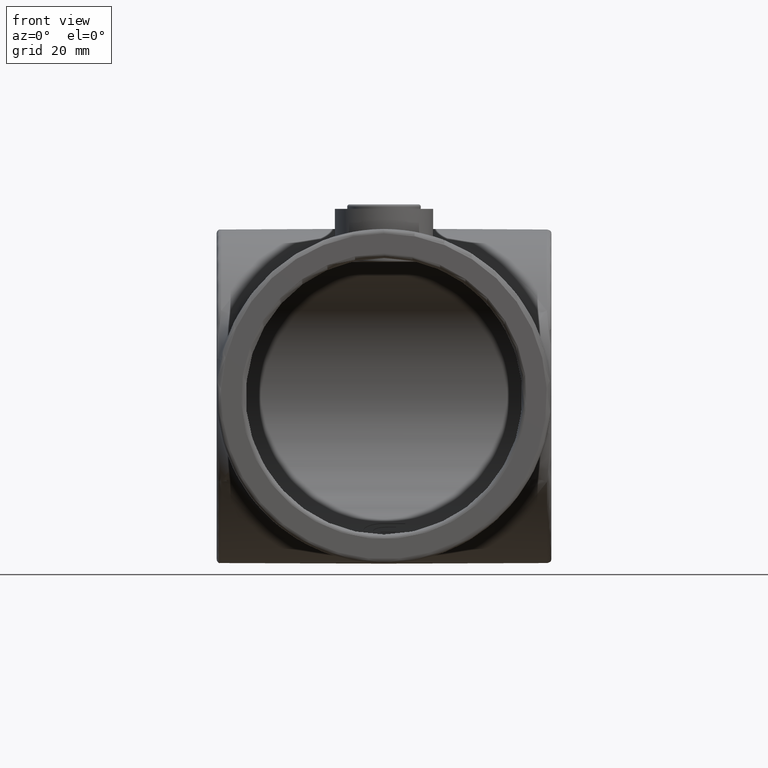
[diagram: clean part render]
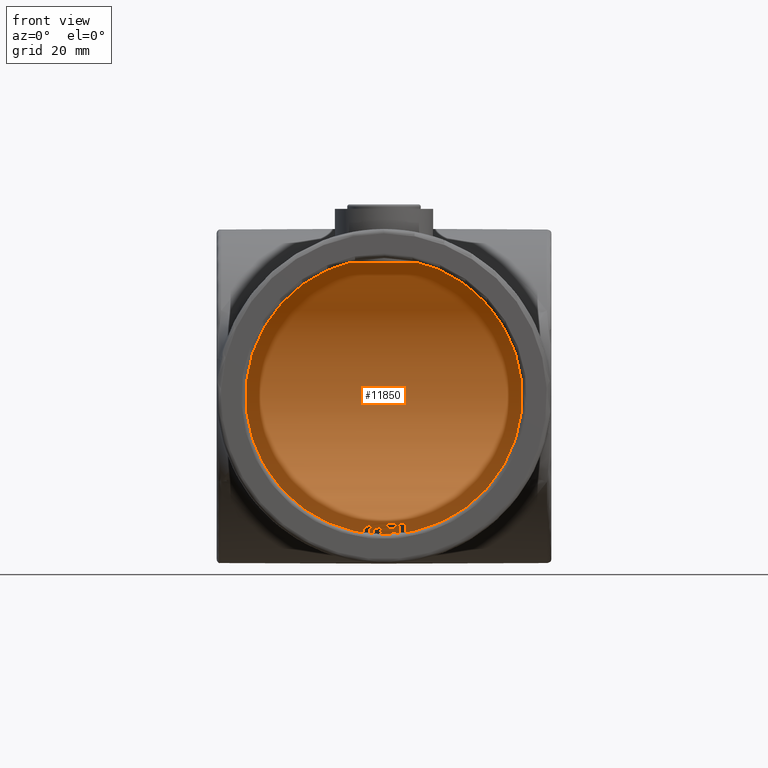
[diagram: same view with one face highlighted and labeled with its STEP entity id]
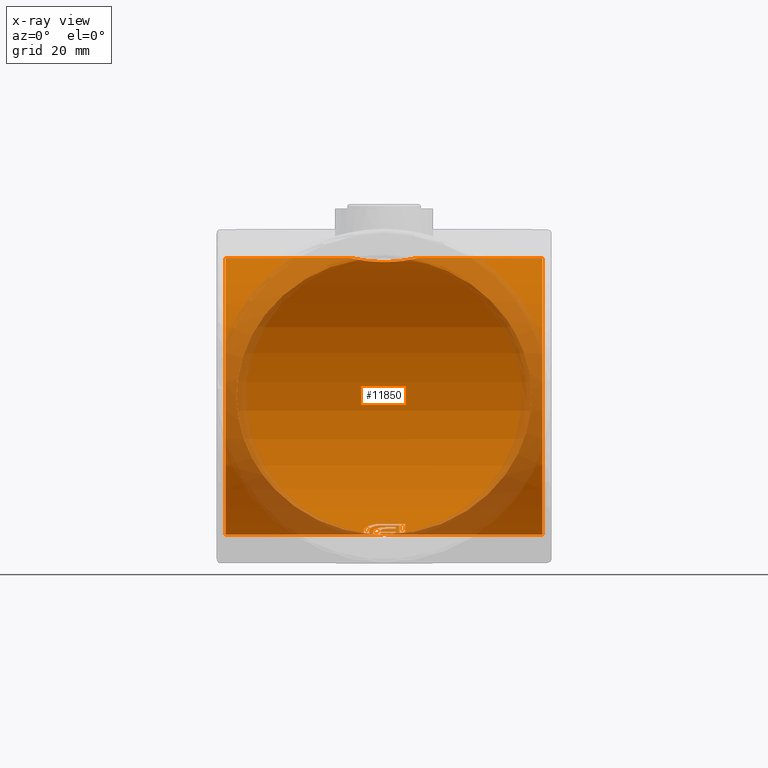
[diagram: x-ray of the same camera — body ghosted, the highlighted face saturated]
A machine part, front view. The second image highlights one B-rep face of the part: STEP entity #11850.
The next image is the same camera in x-ray: the body ghosted, the highlighted face saturated — about 23% of this face is hidden behind the body in this view.
In plain terms, the highlighted cylindrical surface (bore or boss wall) has radius 31 mm, axis along (1, 0, 0).
Its self-contained STEP definition (entity closure, byte-faithful):
#33 = CARTESIAN_POINT ( 'NONE',  ( 7.123155312459974020, 81.25431920314326817, 30.88018639624898753 ) ) ;
#73 = LINE ( 'NONE', #10088, #8027 ) ;
#128 = CARTESIAN_POINT ( 'NONE',  ( -0.3802192675530710608, 84.48666666666666458, -30.99617969291627873 ) ) ;
#132 = CARTESIAN_POINT ( 'NONE',  ( 6.674094865656858389, 87.70568651213653766, 30.77932892789243269 ) ) ;
#136 = CARTESIAN_POINT ( 'NONE',  ( 3.353638244119522049, 87.85376305937838026, -30.75966549891527180 ) ) ;
#139 = CARTESIAN_POINT ( 'NONE',  ( -0.6847684185291672554, 91.64773549936865038, -30.04191083188520039 ) ) ;
#155 = VERTEX_POINT ( 'NONE', #10168 ) ;
#156 = CARTESIAN_POINT ( 'NONE',  ( 0.1259622113365943541, 92.65321670165617718, -29.76779872133945304 ) ) ;
#223 = CARTESIAN_POINT ( 'NONE',  ( -1.840518192527490715, 91.40869575602789610, 30.10187885203538727 ) ) ;
#231 = AXIS2_PLACEMENT_3D ( 'NONE', #12684, #10443, #9456 ) ;
#233 = VERTEX_POINT ( 'NONE', #11387 ) ;
#241 = EDGE_CURVE ( 'NONE', #13867, #3164, #9690, .T. ) ;
#268 = ORIENTED_EDGE ( 'NONE', *, *, #8476, .F. ) ;
#270 = CARTESIAN_POINT ( 'NONE',  ( 4.597620713785860680, 87.37446699323537302, -30.81579096034311860 ) ) ;
#275 = CARTESIAN_POINT ( 'NONE',  ( 3.330198103406216248, 87.76431179017575346, -30.77073031198779773 ) ) ;
#288 = VERTEX_POINT ( 'NONE', #1800 ) ;
#357 = CARTESIAN_POINT ( 'NONE',  ( 2.649871705155119717, 85.01617448098903651, -30.98334051428584246 ) ) ;
#387 = DIRECTION ( 'NONE',  ( 1.000000000000000000, 1.859189885378015208E-15, 0.000000000000000000 ) ) ;
#427 = ORIENTED_EDGE ( 'NONE', *, *, #3283, .F. ) ;
#433 = CARTESIAN_POINT ( 'NONE',  ( -61.00993097816630950, 26.68764059626804297, 21.65746141130453495 ) ) ;
#518 = CARTESIAN_POINT ( 'NONE',  ( 1.846813014014228926, 85.95664800229573643, -30.93826800995224602 ) ) ;
#566 = CARTESIAN_POINT ( 'NONE',  ( -0.5411709820387217151, 96.18948915325404414, -28.50291834501849664 ) ) ;
#629 = ORIENTED_EDGE ( 'NONE', *, *, #5431, .F. ) ;
#668 = CARTESIAN_POINT ( 'NONE',  ( -0.3452297644040147606, 92.31731747142524114, -29.86339280924932282 ) ) ;
#683 = EDGE_CURVE ( 'NONE', #6062, #4649, #5671, .T. ) ;
#693 = LINE ( 'NONE', #4780, #8799 ) ;
#702 = CARTESIAN_POINT ( 'NONE',  ( 4.315063091484576674, 86.70500996454123310, -30.88185880402953032 ) ) ;
#722 = CARTESIAN_POINT ( 'NONE',  ( 2.796633363616275680, 85.10347171930598620, -30.98047738770342718 ) ) ;
#728 = CARTESIAN_POINT ( 'NONE',  ( 0.6041520877070188922, 84.48666666666666458, -30.99617969291627873 ) ) ;
#763 = VERTEX_POINT ( 'NONE', #270 ) ;
#780 = VERTEX_POINT ( 'NONE', #357 ) ;
#798 = CARTESIAN_POINT ( 'NONE',  ( -2.659202239328202655, 95.58067179846047168, -28.75566101998600033 ) ) ;
#805 = ORIENTED_EDGE ( 'NONE', *, *, #12098, .T. ) ;
#845 = VERTEX_POINT ( 'NONE', #11224 ) ;
#888 = CARTESIAN_POINT ( 'NONE',  ( -1.665500349895030041, 96.02853743876838166, -28.57121430888346580 ) ) ;
#892 = LINE ( 'NONE', #9101, #3951 ) ;
#893 = ORIENTED_EDGE ( 'NONE', *, *, #3677, .F. ) ;
#906 = CARTESIAN_POINT ( 'NONE',  ( -3.206126739439494777, 92.35988970021776368, -29.85165094328408486 ) ) ;
#944 = CARTESIAN_POINT ( 'NONE',  ( -0.3802192675530710608, 84.00000000000000000, 0.000000000000000000 ) ) ;
#956 = VERTEX_POINT ( 'NONE', #7303 ) ;
#1055 =( BOUNDED_CURVE ( )  B_SPLINE_CURVE ( 3, ( #6818, #433, #13174, #10024 ),
 .UNSPECIFIED., .F., .F. ) 
 B_SPLINE_CURVE_WITH_KNOTS ( ( 4, 4 ),
 ( 1.740010783319512422, 4.712388980384689674 ),
 .UNSPECIFIED. ) 
 CURVE ( )  GEOMETRIC_REPRESENTATION_ITEM ( )  RATIONAL_B_SPLINE_CURVE ( ( 1.000000000000000000, 0.3896708817066921737, 0.3896708817066921737, 1.000000000000000000 ) ) 
 REPRESENTATION_ITEM ( '' )  );
#1056 = CARTESIAN_POINT ( 'NONE',  ( -3.550080221786235501, 94.82829133615440753, -29.04762743931272695 ) ) ;
#1061 = CARTESIAN_POINT ( 'NONE',  ( 3.415973502846921139, 88.31354943975233596, -30.69899584551671268 ) ) ;
#1099 = CARTESIAN_POINT ( 'NONE',  ( 0.000000000000000000, 84.00000000000000000, -31.00000000000000000 ) ) ;
#1108 = CARTESIAN_POINT ( 'NONE',  ( 1.467944132712083682, 91.49149255091485600, 30.08123293546104193 ) ) ;
#1109 = CARTESIAN_POINT ( 'NONE',  ( -3.198183941686352227, 95.18323503352323200, -28.91276166077831178 ) ) ;
#1110 = ORIENTED_EDGE ( 'NONE', *, *, #4953, .F. ) ;
#1156 = CARTESIAN_POINT ( 'NONE',  ( 4.765570328901326924, 96.18948915325402993, -28.50291834501692634 ) ) ;
#1193 = CARTESIAN_POINT ( 'NONE',  ( -1.246856836132784085, 93.65788955459611032, -29.45725759026893087 ) ) ;
#1203 = CARTESIAN_POINT ( 'NONE',  ( 56.25594771466975885, 31.15350366197689880, -31.00000000000000355 ) ) ;
#1207 = CARTESIAN_POINT ( 'NONE',  ( -7.446443301945128823, 82.31778543042631213, 30.95650185697160239 ) ) ;
#1227 = CARTESIAN_POINT ( 'NONE',  ( -35.50000000000000711, 84.00000000000000000, -31.00000000000000000 ) ) ;
#1237 = DIRECTION ( 'NONE',  ( -1.000000000000000000, 4.444278610465189661E-15, -0.000000000000000000 ) ) ;
#1253 = CIRCLE ( 'NONE', #9117, 31.00000000000000000 ) ;
#1257 = CARTESIAN_POINT ( 'NONE',  ( 7.632296076500717064, 84.16674695325572486, 31.00179386574405171 ) ) ;
#1264 = CARTESIAN_POINT ( 'NONE',  ( -0.7451261797000865439, 91.26368925822515621, -30.13729307311942307 ) ) ;
#1273 = EDGE_LOOP ( 'NONE', ( #6639, #5474, #2938, #10036, #10270, #1934, #8780, #3821, #7071, #11217, #8767, #3686, #10611, #11731, #9758, #11730, #6835, #1910, #6186, #10732, #7589, #268, #12375, #5886, #8465, #11452, #8904, #13248, #3849, #8451, #6696, #893, #11077, #12586, #11849, #1110, #12377, #4869, #629, #427 ) ) ;
#1308 = CARTESIAN_POINT ( 'NONE',  ( -3.887507242736242929, 90.56981116188616454, 30.29653549723952821 ) ) ;
#1423 = CARTESIAN_POINT ( 'NONE',  ( 0.1259622113365943541, 92.65321670165617718, -29.76779872133945304 ) ) ;
#1475 = CARTESIAN_POINT ( 'NONE',  ( 0.8350828084907890858, 92.76984837881968815, -29.73364692419202271 ) ) ;
#1490 = CARTESIAN_POINT ( 'NONE',  ( 35.50000000000000000, 84.00000000000000000, 0.000000000000000000 ) ) ;
#1504 = CARTESIAN_POINT ( 'NONE',  ( -37.50000000000000711, 84.00000000000000000, 0.000000000000000000 ) ) ;
#1509 = VERTEX_POINT ( 'NONE', #5096 ) ;
#1557 = CARTESIAN_POINT ( 'NONE',  ( -0.5411709820387217151, 96.18948915325404414, -28.50291834501849664 ) ) ;
#1573 = CIRCLE ( 'NONE', #3640, 31.00000000000000000 ) ;
#1601 = CARTESIAN_POINT ( 'NONE',  ( 2.694191742477210383, 84.00000000000000000, 0.000000000000000000 ) ) ;
#1617 = CARTESIAN_POINT ( 'NONE',  ( 4.539624262884141892, 87.20222137955228447, -30.83428310759504853 ) ) ;
#1640 = VERTEX_POINT ( 'NONE', #13903 ) ;
#1650 = DIRECTION ( 'NONE',  ( 1.000000000000000000, -0.000000000000000000, -0.000000000000000000 ) ) ;
#1665 = CARTESIAN_POINT ( 'NONE',  ( 0.03544380298449788247, 92.61577771303294071, -29.77866713004452137 ) ) ;
#1691 = CARTESIAN_POINT ( 'NONE',  ( -1.204773847963580558, 96.13604149481606953, -28.52572032696760829 ) ) ;
#1704 = CARTESIAN_POINT ( 'NONE',  ( 2.515373130964903670, 86.43887616151681641, -30.90397873581877164 ) ) ;
#1709 = DIRECTION ( 'NONE',  ( 1.860630825039639740E-15, -1.000000000000000000, 2.664535259100375697E-15 ) ) ;
#1725 = B_SPLINE_CURVE_WITH_KNOTS ( 'NONE', 3,
 ( #1557, #7036, #8170, #4718, #2638, #1691, #6989, #12222, #13298, #10195 ),
 .UNSPECIFIED., .F., .F.,
 ( 4, 2, 2, 2, 4 ),
 ( 2.114194236346706529E-17, 0.0002858539662678852874, 0.0005717079325357494329, 0.0008575618988036136326, 0.001143415865071477616 ),
 .UNSPECIFIED. ) ;
#1740 = CARTESIAN_POINT ( 'NONE',  ( 0.9235570193883770873, 94.24172243824182260, -29.25930839406989747 ) ) ;
#1742 = LINE ( 'NONE', #9266, #5112 ) ;
#1746 = CARTESIAN_POINT ( 'NONE',  ( -2.095353798773885501, 95.87381392594669194, -28.63588988839063987 ) ) ;
#1747 = CARTESIAN_POINT ( 'NONE',  ( 2.694191742477258789, 84.00000000000000000, 0.000000000000000000 ) ) ;
#1759 =( BOUNDED_CURVE ( )  B_SPLINE_CURVE ( 3, ( #1099, #1203, #10849, #11935 ),
 .UNSPECIFIED., .F., .F. ) 
 B_SPLINE_CURVE_WITH_KNOTS ( ( 4, 4 ),
 ( 4.712388980384689674, 7.684767177449867148 ),
 .UNSPECIFIED. ) 
 CURVE ( )  GEOMETRIC_REPRESENTATION_ITEM ( )  RATIONAL_B_SPLINE_CURVE ( ( 1.000000000000000000, 0.3896708817066921737, 0.3896708817066921737, 1.000000000000000000 ) ) 
 REPRESENTATION_ITEM ( '' )  );
#1787 = CARTESIAN_POINT ( 'NONE',  ( 0.5385027825588115657, 94.22515264738235885, -29.26510396511550383 ) ) ;
#1800 = CARTESIAN_POINT ( 'NONE',  ( -0.7511080009330526330, 91.00404478656402318, -30.19839990177965205 ) ) ;
#1830 = VERTEX_POINT ( 'NONE', #11195 ) ;
#1832 = CARTESIAN_POINT ( 'NONE',  ( 2.694191742477258789, 88.62942383951482839, -30.65238057499143665 ) ) ;
#1846 = CARTESIAN_POINT ( 'NONE',  ( -1.840411861789091663, 95.97345650729515398, -28.59436181663382115 ) ) ;
#1866 = AXIS2_PLACEMENT_3D ( 'NONE', #8151, #8054, #4749 ) ;
#1869 = CARTESIAN_POINT ( 'NONE',  ( 3.353454989233097816, 85.49762847676886679, -30.96401785634687798 ) ) ;
#1892 = CARTESIAN_POINT ( 'NONE',  ( -1.647263182067968845, 93.30111322962176246, -29.57187706308387831 ) ) ;
#1904 = FACE_OUTER_BOUND ( 'NONE', #7450, .T. ) ;
#1910 = ORIENTED_EDGE ( 'NONE', *, *, #4861, .F. ) ;
#1927 = EDGE_CURVE ( 'NONE', #8086, #8083, #1742, .T. ) ;
#1934 = ORIENTED_EDGE ( 'NONE', *, *, #5730, .F. ) ;
#1961 = VERTEX_POINT ( 'NONE', #12452 ) ;
#1978 = B_SPLINE_CURVE_WITH_KNOTS ( 'NONE', 3,
 ( #6279, #3073, #7541, #1109, #10671, #1056, #4339, #2249, #13941, #8673 ),
 .UNSPECIFIED., .F., .F.,
 ( 4, 2, 2, 2, 4 ),
 ( 0.000000000000000000, 0.0005157686789029925249, 0.001031537357805985050, 0.001547306036708977466, 0.002063074715611970100 ),
 .UNSPECIFIED. ) ;
#2008 = CARTESIAN_POINT ( 'NONE',  ( 1.317214596534338478, 84.53659601104729404, -30.99536208210682631 ) ) ;
#2046 = CARTESIAN_POINT ( 'NONE',  ( -2.880319053305147481, 93.57615712368915695, -29.48429096268119309 ) ) ;
#2047 = AXIS2_PLACEMENT_3D ( 'NONE', #5888, #387, #1709 ) ;
#2061 = CYLINDRICAL_SURFACE ( 'NONE', #12083, 31.00000000000000000 ) ;
#2089 = CARTESIAN_POINT ( 'NONE',  ( -3.207924260986087628, 92.26868718960635363, -29.87704430986157789 ) ) ;
#2096 = CARTESIAN_POINT ( 'NONE',  ( -4.186589612597718002, 93.84747174312839491, -29.39445259181093917 ) ) ;
#2161 = CARTESIAN_POINT ( 'NONE',  ( -1.896594854012117581, 94.59882028649097663, -29.13205800437448190 ) ) ;
#2164 = B_SPLINE_CURVE_WITH_KNOTS ( 'NONE', 3,
 ( #8830, #9659, #9841, #3333, #12988, #7667, #1193, #9798, #10744, #3381 ),
 .UNSPECIFIED., .F., .F.,
 ( 4, 2, 2, 2, 4 ),
 ( 0.000000000000000000, 0.0003289928626339373285, 0.0006579857252678746569, 0.0009869785879018119854, 0.001315971450535749314 ),
 .UNSPECIFIED. ) ;
#2205 = CARTESIAN_POINT ( 'NONE',  ( -5.602578926020814976, 89.18519062818624832, 30.56459813647034807 ) ) ;
#2206 = CARTESIAN_POINT ( 'NONE',  ( -0.4747754687330669743, 92.15189173408158751, -29.90900621320039221 ) ) ;
#2248 = CARTESIAN_POINT ( 'NONE',  ( 6.068162711664879083, 88.63188581362810226, 30.65334235868821011 ) ) ;
#2249 = CARTESIAN_POINT ( 'NONE',  ( -3.850821791794561300, 94.43250057595442115, -29.19217933960177547 ) ) ;
#2253 = B_SPLINE_CURVE_WITH_KNOTS ( 'NONE', 3,
 ( #5301, #2089, #906, #10515, #9616, #7342, #10653, #9522, #2046, #9571, #5352, #4235, #3190, #12841 ),
 .UNSPECIFIED., .F., .F.,
 ( 4, 2, 2, 2, 2, 2, 4 ),
 ( 0.000000000000000000, 0.0002812563874854826841, 0.0005625127749709653681, 0.001125025549941933555, 0.001687538324912901634, 0.001968794712398385782, 0.002250051099883870146 ),
 .UNSPECIFIED. ) ;
#2259 = AXIS2_PLACEMENT_3D ( 'NONE', #5186, #13760, #12685 ) ;
#2302 = CARTESIAN_POINT ( 'NONE',  ( -7.123718169917534482, 81.25609098825820809, 30.88031873708606057 ) ) ;
#2307 = CARTESIAN_POINT ( 'NONE',  ( 3.245793792964501989, 87.50103290321420957, -30.80178684180900817 ) ) ;
#2308 = CARTESIAN_POINT ( 'NONE',  ( -0.7227292704415647639, 91.45703023457816982, -30.08981727984359011 ) ) ;
#2347 = CARTESIAN_POINT ( 'NONE',  ( 7.456776821851158310, 85.63525367115839515, 30.95890944060796812 ) ) ;
#2354 = CARTESIAN_POINT ( 'NONE',  ( -0.6655068190382805726, 91.70964638470931618, -30.02607920763115601 ) ) ;
#2388 = CARTESIAN_POINT ( 'NONE',  ( -2.546014466430008838, 91.19681112432027703, 30.15323851377928577 ) ) ;
#2422 = EDGE_CURVE ( 'NONE', #288, #4088, #5477, .T. ) ;
#2460 = VERTEX_POINT ( 'NONE', #12491 ) ;
#2496 = B_SPLINE_CURVE_WITH_KNOTS ( 'NONE', 3,
 ( #11844, #4293, #7588, #10805, #2206, #10855, #5368, #9588 ),
 .UNSPECIFIED., .F., .F.,
 ( 4, 2, 2, 4 ),
 ( 0.000000000000000000, 0.0003221347197253719274, 0.0004832020795880578911, 0.0006442694394507438548 ),
 .UNSPECIFIED. ) ;
#2531 = CARTESIAN_POINT ( 'NONE',  ( -5.808761847439067871, 79.04685750238716935, 30.60294150340785180 ) ) ;
#2541 = CARTESIAN_POINT ( 'NONE',  ( -1.164734330181522504, 94.91899514602158661, -29.01337620678849660 ) ) ;
#2585 = FACE_OUTER_BOUND ( 'NONE', #5009, .T. ) ;
#2636 = B_SPLINE_CURVE_WITH_KNOTS ( 'NONE', 3,
 ( #10347, #1704, #3936, #5000, #8140, #13578, #518, #12502, #6099, #7179, #2894, #10258 ),
 .UNSPECIFIED., .F., .F.,
 ( 4, 2, 2, 2, 2, 4 ),
 ( 0.000000000000000000, 0.0002758635330087855437, 0.0005517270660175710873, 0.001103454132035119840, 0.001655181198052668376, 0.002206908264070217129 ),
 .UNSPECIFIED. ) ;
#2638 = CARTESIAN_POINT ( 'NONE',  ( -1.016496901543760156, 96.16353913576399748, -28.51400601509734045 ) ) ;
#2710 = VERTEX_POINT ( 'NONE', #10375 ) ;
#2850 = DIRECTION ( 'NONE',  ( 0.000000000000000000, 0.000000000000000000, 1.000000000000000000 ) ) ;
#2854 = CARTESIAN_POINT ( 'NONE',  ( -0.08915951368140226374, 92.53900610405179350, -29.80077675657351577 ) ) ;
#2894 = CARTESIAN_POINT ( 'NONE',  ( 0.7879176271836616507, 85.68684716124765544, -30.95407212691209864 ) ) ;
#2912 = CIRCLE ( 'NONE', #10305, 31.00000000000000000 ) ;
#2917 = CARTESIAN_POINT ( 'NONE',  ( 4.083459326130315148, 86.32022403251717435, -30.91313321435428207 ) ) ;
#2925 = VECTOR ( 'NONE', #6286, 1000.000000000000000 ) ;
#2938 = ORIENTED_EDGE ( 'NONE', *, *, #6013, .F. ) ;
#2945 = CARTESIAN_POINT ( 'NONE',  ( -2.261571829468611128, 95.79880020962792742, -28.66687915454560098 ) ) ;
#2983 = CARTESIAN_POINT ( 'NONE',  ( -0.4641940751108006302, 94.03180312572895616, -29.33194378227625521 ) ) ;
#2998 = CARTESIAN_POINT ( 'NONE',  ( -2.353384359628750921, 91.81265878867986885, -29.99964271975471064 ) ) ;
#3022 = CARTESIAN_POINT ( 'NONE',  ( 4.649202453820061365, 87.55789804104325924, -30.79529298479280186 ) ) ;
#3036 = CARTESIAN_POINT ( 'NONE',  ( -2.066452159094058327, 92.69186853786699487, -29.75670491458592082 ) ) ;
#3044 = VERTEX_POINT ( 'NONE', #13336 ) ;
#3073 = CARTESIAN_POINT ( 'NONE',  ( -2.798146189206803136, 95.48626479995650129, -28.79368123674930402 ) ) ;
#3080 = CARTESIAN_POINT ( 'NONE',  ( -1.849840749993829636, 93.05634402217657453, -29.64777025590791837 ) ) ;
#3102 = CARTESIAN_POINT ( 'NONE',  ( 1.492743920132737934, 84.56930073546317317, -30.99480321960501072 ) ) ;
#3150 = CARTESIAN_POINT ( 'NONE',  ( -4.108661037081453138, 94.00073434417899421, -29.34266271968328255 ) ) ;
#3159 = VERTEX_POINT ( 'NONE', #6626 ) ;
#3164 = VERTEX_POINT ( 'NONE', #156 ) ;
#3185 = DIRECTION ( 'NONE',  ( -6.575161562170156400E-16, 1.000000000000000000, 0.000000000000000000 ) ) ;
#3190 = CARTESIAN_POINT ( 'NONE',  ( -2.496190971199229836, 94.08855555142204707, -29.31255801068594380 ) ) ;
#3251 = CARTESIAN_POINT ( 'NONE',  ( 2.898757936051074235, 91.09126650508004275, 30.17883033841999207 ) ) ;
#3275 = ORIENTED_EDGE ( 'NONE', *, *, #683, .T. ) ;
#3283 = EDGE_CURVE ( 'NONE', #7708, #12067, #6234, .T. ) ;
#3300 = CARTESIAN_POINT ( 'NONE',  ( -7.143758249089748880, 86.69140796715431918, 30.88482204681229248 ) ) ;
#3313 = CARTESIAN_POINT ( 'NONE',  ( -0.7511080009330733942, 84.00000000000000000, 0.000000000000000000 ) ) ;
#3322 = DIRECTION ( 'NONE',  ( 1.000000000000000000, -0.000000000000000000, -0.000000000000000000 ) ) ;
#3333 = CARTESIAN_POINT ( 'NONE',  ( -0.8709399223310229088, 93.87590054913714255, -29.38483618049485457 ) ) ;
#3345 = VERTEX_POINT ( 'NONE', #1156 ) ;
#3353 = CARTESIAN_POINT ( 'NONE',  ( -6.289197822824624140, 88.32690691848173969, 30.69816775300785494 ) ) ;
#3381 = CARTESIAN_POINT ( 'NONE',  ( -1.574527641707484937, 93.37866573361324640, -29.54726094001182446 ) ) ;
#3398 = CARTESIAN_POINT ( 'NONE',  ( 7.263374443558983984, 86.34967377152401014, 30.91289636200746216 ) ) ;
#3403 = CARTESIAN_POINT ( 'NONE',  ( 3.138170251992287607, 87.24620338087994753, -30.83004021665350791 ) ) ;
#3423 = CIRCLE ( 'NONE', #7373, 31.00000000000000000 ) ;
#3443 = CARTESIAN_POINT ( 'NONE',  ( 2.710451092730240319, 86.63762987921404601, -30.88766623885449292 ) ) ;
#3450 = EDGE_CURVE ( 'NONE', #7791, #7791, #3423, .T. ) ;
#3493 = CARTESIAN_POINT ( 'NONE',  ( -2.227665033823184260, 92.30098903662235443, -29.86793566709750891 ) ) ;
#3631 = CARTESIAN_POINT ( 'NONE',  ( -6.652538028363945699, 80.25556797359995187, 30.77482132550688831 ) ) ;
#3640 = AXIS2_PLACEMENT_3D ( 'NONE', #1601, #9132, #10056 ) ;
#3677 = EDGE_CURVE ( 'NONE', #1640, #7026, #11988, .T. ) ;
#3686 = ORIENTED_EDGE ( 'NONE', *, *, #13100, .F. ) ;
#3731 = B_SPLINE_CURVE_WITH_KNOTS ( 'NONE', 3,
 ( #3934, #1740, #3974, #1787, #4999, #9368, #10444, #12458, #5093, #2983 ),
 .UNSPECIFIED., .F., .F.,
 ( 4, 2, 2, 2, 4 ),
 ( 4.965645949983592435E-17, 0.0003854216711756620266, 0.0007708433423512743967, 0.001156265013526886713, 0.001541686684702499137 ),
 .UNSPECIFIED. ) ;
#3750 = VECTOR ( 'NONE', #9941, 1000.000000000000000 ) ;
#3790 = DIRECTION ( 'NONE',  ( -1.000000000000000000, 0.000000000000000000, 0.000000000000000000 ) ) ;
#3804 = CARTESIAN_POINT ( 'NONE',  ( -0.2059566884360171102, 92.45148155601954443, -29.82576305258469063 ) ) ;
#3821 = ORIENTED_EDGE ( 'NONE', *, *, #1927, .F. ) ;
#3849 = ORIENTED_EDGE ( 'NONE', *, *, #5449, .F. ) ;
#3898 = CARTESIAN_POINT ( 'NONE',  ( -0.04938770507210268196, 92.56710086463355935, -29.79270757110846546 ) ) ;
#3913 = CARTESIAN_POINT ( 'NONE',  ( 3.221169261074136703, 85.39001000924962170, -30.96897951374895541 ) ) ;
#3920 = B_SPLINE_CURVE_WITH_KNOTS ( 'NONE', 3,
 ( #11831, #6247, #11678, #2998, #13868, #10461, #12786, #13688 ),
 .UNSPECIFIED., .F., .F.,
 ( 4, 2, 2, 4 ),
 ( 0.000000000000000000, 0.0003906487271429856935, 0.0007812974542859713869, 0.001562594908571979854 ),
 .UNSPECIFIED. ) ;
#3929 = EDGE_CURVE ( 'NONE', #845, #6693, #693, .T. ) ;
#3934 = CARTESIAN_POINT ( 'NONE',  ( 1.052017728014928544, 94.24407277816655437, -29.25848548568257712 ) ) ;
#3936 = CARTESIAN_POINT ( 'NONE',  ( 2.448511786534353973, 86.37568602543532847, -30.90889325967051349 ) ) ;
#3951 = VECTOR ( 'NONE', #3790, 1000.000000000000000 ) ;
#3974 = CARTESIAN_POINT ( 'NONE',  ( 0.7950955535985805289, 94.23937493122967624, -29.26013085700397909 ) ) ;
#3979 = CARTESIAN_POINT ( 'NONE',  ( 4.128761371588518969, 86.39242827151855408, -30.90754417558338929 ) ) ;
#4032 = CARTESIAN_POINT ( 'NONE',  ( -2.581578503172852646, 95.62730953627351482, -28.73687875882850307 ) ) ;
#4033 = VECTOR ( 'NONE', #6828, 1000.000000000000000 ) ;
#4064 = CARTESIAN_POINT ( 'NONE',  ( 4.623419648292808048, 87.46620481538884917, -30.80574525834292032 ) ) ;
#4088 = VERTEX_POINT ( 'NONE', #8655 ) ;
#4102 = EDGE_CURVE ( 'NONE', #4980, #233, #2912, .T. ) ;
#4127 = CARTESIAN_POINT ( 'NONE',  ( -2.016070854318675831, 92.78523379205513777, -29.72925623514798943 ) ) ;
#4128 = CARTESIAN_POINT ( 'NONE',  ( -37.50000000000105871, 90.08498717050889582, -30.39692305373591807 ) ) ;
#4197 = CARTESIAN_POINT ( 'NONE',  ( -4.066207485986645054, 94.07579034276430718, -29.31697026744948786 ) ) ;
#4217 = EDGE_CURVE ( 'NONE', #6693, #8086, #10795, .T. ) ;
#4235 = CARTESIAN_POINT ( 'NONE',  ( -2.559471409820372134, 94.02162249274917372, -29.33551811512007745 ) ) ;
#4247 = CARTESIAN_POINT ( 'NONE',  ( 4.765570328901326924, 88.49879636109167791, -30.67182471424593970 ) ) ;
#4278 = CARTESIAN_POINT ( 'NONE',  ( -4.467106070884727664, 93.03586408514406969, -29.65439964478776602 ) ) ;
#4293 = CARTESIAN_POINT ( 'NONE',  ( -0.6100785870458143023, 91.86948885898218009, -29.98468600393988481 ) ) ;
#4319 = EDGE_CURVE ( 'NONE', #956, #7391, #6613, .T. ) ;
#4338 = CARTESIAN_POINT ( 'NONE',  ( 5.557466549716630233, 78.77934960481162818, 30.55723824973748748 ) ) ;
#4339 = CARTESIAN_POINT ( 'NONE',  ( -3.657305844903739001, 94.70106929406162521, -29.09480226477667131 ) ) ;
#4371 = CARTESIAN_POINT ( 'NONE',  ( -4.222091261731295120, 93.76927470949885901, -29.42054113514721436 ) ) ;
#4372 = EDGE_CURVE ( 'NONE', #13081, #2710, #6442, .T. ) ;
#4386 = CARTESIAN_POINT ( 'NONE',  ( -6.074300380024328483, 88.62363140466018763, 30.65457378154846424 ) ) ;
#4434 = CARTESIAN_POINT ( 'NONE',  ( 1.834890053978293523, 91.41018635354635080, 30.10151330940056269 ) ) ;
#4435 = CARTESIAN_POINT ( 'NONE',  ( -2.432936785630980481, 94.15543270352227978, -29.28936985672839910 ) ) ;
#4440 = CARTESIAN_POINT ( 'NONE',  ( 3.421973407977590753, 88.49879636109167791, -30.67182471424593970 ) ) ;
#4483 = CARTESIAN_POINT ( 'NONE',  ( -0.3706246870586021869, 91.62494960948448863, 30.04763124533309337 ) ) ;
#4520 = DIRECTION ( 'NONE',  ( 0.000000000000000000, 0.000000000000000000, -1.000000000000000000 ) ) ;
#4523 = CARTESIAN_POINT ( 'NONE',  ( 6.286824628326969311, 88.33029916918903268, 30.69768250019774314 ) ) ;
#4529 = CARTESIAN_POINT ( 'NONE',  ( 3.276280008398462229, 87.58794541771169406, -30.79179330383766455 ) ) ;
#4545 = VERTEX_POINT ( 'NONE', #9172 ) ;
#4547 = CARTESIAN_POINT ( 'NONE',  ( -4.553300676463714503, 84.48666666666666458, -30.99617969291627873 ) ) ;
#4623 = CARTESIAN_POINT ( 'NONE',  ( -2.178464051080761354, 94.39444095949488656, -29.20560549235620229 ) ) ;
#4649 = VERTEX_POINT ( 'NONE', #13039 ) ;
#4718 = CARTESIAN_POINT ( 'NONE',  ( -0.9219567956309668855, 96.17414312037185198, -28.50947707721427093 ) ) ;
#4749 = DIRECTION ( 'NONE',  ( 0.000000000000000000, 5.372046893347532003E-15, 1.000000000000000000 ) ) ;
#4765 = EDGE_CURVE ( 'NONE', #9249, #7819, #5880, .T. ) ;
#4780 = CARTESIAN_POINT ( 'NONE',  ( -37.50000000000017053, 85.68097504081769955, -30.95439101181199959 ) ) ;
#4781 = FACE_BOUND ( 'NONE', #9887, .T. ) ;
#4861 = EDGE_CURVE ( 'NONE', #11498, #13081, #6376, .T. ) ;
#4869 = ORIENTED_EDGE ( 'NONE', *, *, #13781, .F. ) ;
#4877 = CARTESIAN_POINT ( 'NONE',  ( -1.574527641707484937, 93.37866573361324640, -29.54726094001182446 ) ) ;
#4953 = EDGE_CURVE ( 'NONE', #10225, #6339, #6045, .T. ) ;
#4962 = CARTESIAN_POINT ( 'NONE',  ( 4.435666798062454674, 86.94993867750287109, -30.85943380967395910 ) ) ;
#4980 = VERTEX_POINT ( 'NONE', #9607 ) ;
#4982 = CARTESIAN_POINT ( 'NONE',  ( 3.939962204823127312, 86.10982180209207115, -30.92819832091398169 ) ) ;
#4999 = CARTESIAN_POINT ( 'NONE',  ( 0.4107520371400361636, 94.21282340845672820, -29.26941302465385064 ) ) ;
#5000 = CARTESIAN_POINT ( 'NONE',  ( 2.308657982352535054, 86.25657734192793669, -30.91781727950812808 ) ) ;
#5009 = EDGE_LOOP ( 'NONE', ( #8890 ) ) ;
#5056 = CARTESIAN_POINT ( 'NONE',  ( 4.224945857444470043, 86.54706034692409844, -30.89528711129598548 ) ) ;
#5093 = CARTESIAN_POINT ( 'NONE',  ( -0.3418622469867098612, 94.06849777435506610, -29.31939386422386562 ) ) ;
#5096 = CARTESIAN_POINT ( 'NONE',  ( 0.000000000000000000, 84.00000000000000000, -31.00000000000000000 ) ) ;
#5112 = VECTOR ( 'NONE', #1650, 1000.000000000000000 ) ;
#5120 = CARTESIAN_POINT ( 'NONE',  ( 2.008506584172875087, 84.71241465235985402, -30.99188443378956848 ) ) ;
#5126 = CARTESIAN_POINT ( 'NONE',  ( 4.764162805147315716, 88.40391833143033296, -30.68574096926383987 ) ) ;
#5186 = CARTESIAN_POINT ( 'NONE',  ( -35.50000000000000711, 84.00000000000000000, 0.000000000000000000 ) ) ;
#5192 = CARTESIAN_POINT ( 'NONE',  ( -1.720007066455013112, 93.22347692223043225, -29.59620113562203869 ) ) ;
#5217 = CARTESIAN_POINT ( 'NONE',  ( 2.649871705155119717, 85.01617448098903651, -30.98334051428584246 ) ) ;
#5301 = CARTESIAN_POINT ( 'NONE',  ( -3.209703755540006753, 92.17735945882903081, -29.90201986958571823 ) ) ;
#5339 = CARTESIAN_POINT ( 'NONE',  ( -0.4641940751108006302, 94.03180312572895616, -29.33194378227625521 ) ) ;
#5352 = CARTESIAN_POINT ( 'NONE',  ( -2.676444402025114577, 93.88063228660443826, -29.38330556773054525 ) ) ;
#5357 = CARTESIAN_POINT ( 'NONE',  ( -4.549002571906180847, 92.35072756613483591, -29.85460857970230464 ) ) ;
#5368 = CARTESIAN_POINT ( 'NONE',  ( -0.3799198025663532707, 92.27772088337249556, -29.87442093976763147 ) ) ;
#5370 = CARTESIAN_POINT ( 'NONE',  ( 0.8350828084907890858, 92.76984837881968815, -29.73364692419202271 ) ) ;
#5419 = CARTESIAN_POINT ( 'NONE',  ( -2.892319582188626725, 91.06494732203405817, 30.18464235584472988 ) ) ;
#5431 = EDGE_CURVE ( 'NONE', #12067, #12270, #1978, .T. ) ;
#5449 = EDGE_CURVE ( 'NONE', #4088, #13867, #2496, .T. ) ;
#5463 = CARTESIAN_POINT ( 'NONE',  ( 6.041071361945919982, 79.33267757833525025, 30.64817566804261872 ) ) ;
#5474 = ORIENTED_EDGE ( 'NONE', *, *, #11284, .F. ) ;
#5477 = B_SPLINE_CURVE_WITH_KNOTS ( 'NONE', 3,
 ( #5563, #11994, #1264, #2308, #8814, #139, #2354, #6653 ),
 .UNSPECIFIED., .F., .F.,
 ( 4, 2, 2, 4 ),
 ( 0.000000000000000000, 0.0004000044900714646657, 0.0006000067351071769950, 0.0008000089801428892158 ),
 .UNSPECIFIED. ) ;
#5496 = VERTEX_POINT ( 'NONE', #4435 ) ;
#5509 = CARTESIAN_POINT ( 'NONE',  ( -6.676760221737280787, 87.70094659205641108, 30.77990612714344110 ) ) ;
#5544 = DIRECTION ( 'NONE',  ( 0.000000000000000000, 0.000000000000000000, 1.000000000000000000 ) ) ;
#5558 = CARTESIAN_POINT ( 'NONE',  ( 7.574926302794859900, 83.05216365961837255, 30.98765969665095810 ) ) ;
#5563 = CARTESIAN_POINT ( 'NONE',  ( -0.7511080009330526330, 91.00404478656402318, -30.19839990177965205 ) ) ;
#5600 = CARTESIAN_POINT ( 'NONE',  ( 6.982450379377507232, 80.91443479005567951, 30.84782506196081897 ) ) ;
#5606 = B_SPLINE_CURVE_WITH_KNOTS ( 'NONE', 3,
 ( #12538, #4064, #3022, #8484, #12638, #6360, #10664, #12677, #5126, #4247 ),
 .UNSPECIFIED., .F., .F.,
 ( 4, 2, 2, 2, 4 ),
 ( 0.000000000000000000, 0.0002870504080991531691, 0.0005741008161983063383, 0.0008611512242974595074, 0.001148201632396612677 ),
 .UNSPECIFIED. ) ;
#5627 = EDGE_CURVE ( 'NONE', #1961, #11498, #9865, .T. ) ;
#5659 = CARTESIAN_POINT ( 'NONE',  ( 2.582225332400281292, 86.50206204805225241, -30.89886220409573880 ) ) ;
#5671 = B_SPLINE_CURVE_WITH_KNOTS ( 'NONE', 3,
 ( #4338, #7732, #5463, #10958, #6644, #5600, #33, #8712, #11843, #5558, #13046, #1257, #12909, #8808, #2347, #3398, #6502, #9773, #132, #4523, #2248, #13102, #7587, #6694, #3251, #4434, #1108, #11984, #10759, #4483, #11943, #9859, #223, #2388, #5419, #7780, #1308, #6551, #8850, #8672, #2205, #4386, #3353, #5509, #9720, #3300, #10804, #13002, #7683, #11888, #12957, #1207, #8756, #2302, #6883, #3631, #5845, #5708, #2531, #11181 ),
 .UNSPECIFIED., .F., .F.,
 ( 4, 2, 2, 2, 2, 2, 2, 2, 2, 2, 2, 2, 2, 2, 2, 2, 2, 2, 2, 2, 2, 2, 2, 2, 2, 2, 2, 2, 2, 4 ),
 ( 0.04211939117065870847, 0.04322606357798514098, 0.04433273598531157350, 0.04543940839263801296, 0.04654608079996444547, 0.04765275320729087799, 0.04875942561461731051, 0.04986609802194374302, 0.05097277042927017554, 0.05207944283659661500, 0.05318611524392304751, 0.05539946005857591949, 0.05761280487322878452, 0.05871947728055522397, 0.05982614968788166343, 0.06093282209520810982, 0.06203949450253455622, 0.06314616690986099568, 0.06425283931718743513, 0.06535951172451387459, 0.06646618413184031404, 0.06757285653916675350, 0.06867952894649320683, 0.06978620135381964629, 0.07089287376114608574, 0.07310621857579900629, 0.07421289098312544574, 0.07531956339045189908, 0.07642623579777832465, 0.07753290820510477799 ),
 .UNSPECIFIED. ) ;
#5708 = CARTESIAN_POINT ( 'NONE',  ( -6.039757244105455669, 79.33124788537800498, 30.64792818996159340 ) ) ;
#5730 = EDGE_CURVE ( 'NONE', #780, #3159, #9458, .T. ) ;
#5783 = CARTESIAN_POINT ( 'NONE',  ( -0.7511080009330595164, 88.62942383951481418, -30.65238057499175639 ) ) ;
#5788 = CARTESIAN_POINT ( 'NONE',  ( -37.50000000000000711, 85.68097504082109594, -30.95439101181181840 ) ) ;
#5798 = CARTESIAN_POINT ( 'NONE',  ( -2.435269419174247663, 84.00000000000000000, 0.000000000000000000 ) ) ;
#5801 = FACE_BOUND ( 'NONE', #1273, .T. ) ;
#5845 = CARTESIAN_POINT ( 'NONE',  ( -6.461093204294197534, 79.93426655067807474, 30.73373651484464375 ) ) ;
#5880 = LINE ( 'NONE', #11132, #4033 ) ;
#5886 = ORIENTED_EDGE ( 'NONE', *, *, #4319, .F. ) ;
#5888 = CARTESIAN_POINT ( 'NONE',  ( -0.7511080009330526330, 84.00000000000000000, 0.000000000000000000 ) ) ;
#6013 = EDGE_CURVE ( 'NONE', #4545, #3345, #10372, .T. ) ;
#6018 = DIRECTION ( 'NONE',  ( 1.000000000000000000, -0.000000000000000000, 0.000000000000000000 ) ) ;
#6045 = LINE ( 'NONE', #10693, #12581 ) ;
#6062 = VERTEX_POINT ( 'NONE', #6871 ) ;
#6075 = CARTESIAN_POINT ( 'NONE',  ( 2.649871705155119717, 85.01617448098903651, -30.98334051428584246 ) ) ;
#6099 = CARTESIAN_POINT ( 'NONE',  ( 1.331576539516846180, 85.76433238399683034, -30.94977044577728265 ) ) ;
#6176 = DIRECTION ( 'NONE',  ( 1.000000000000000000, -0.000000000000000000, -0.000000000000000000 ) ) ;
#6186 = ORIENTED_EDGE ( 'NONE', *, *, #5627, .F. ) ;
#6220 = CARTESIAN_POINT ( 'NONE',  ( 2.494479865913398875, 84.92817225987526797, -30.98612739763006729 ) ) ;
#6234 = B_SPLINE_CURVE_WITH_KNOTS ( 'NONE', 3,
 ( #888, #6240, #1846, #9374, #1746, #2945, #10352, #10454, #4032, #798 ),
 .UNSPECIFIED., .F., .F.,
 ( 4, 2, 2, 2, 4 ),
 ( 0.000000000000000000, 0.0002768168702296858793, 0.0005536337404593717586, 0.0008304506106890576379, 0.001107267480918743517 ),
 .UNSPECIFIED. ) ;
#6240 = CARTESIAN_POINT ( 'NONE',  ( -1.752955202823031966, 96.00100231261615136, -28.58280665116974006 ) ) ;
#6247 = CARTESIAN_POINT ( 'NONE',  ( -2.263043279045166223, 92.17996347221300368, -29.90157146618688344 ) ) ;
#6279 = CARTESIAN_POINT ( 'NONE',  ( -2.659202239328202655, 95.58067179846047168, -28.75566101998600033 ) ) ;
#6286 = DIRECTION ( 'NONE',  ( -1.000000000000000000, 0.000000000000000000, 0.000000000000000000 ) ) ;
#6321 = CARTESIAN_POINT ( 'NONE',  ( -2.435269419174247663, 85.68097504082109594, -30.95439101181181840 ) ) ;
#6327 = CARTESIAN_POINT ( 'NONE',  ( -1.907658926864581828, 92.96711812034743616, -29.67490188175674959 ) ) ;
#6339 = VERTEX_POINT ( 'NONE', #10601 ) ;
#6360 = CARTESIAN_POINT ( 'NONE',  ( 4.736286858513182096, 88.02510362214492545, -30.73772173072723746 ) ) ;
#6376 = LINE ( 'NONE', #5788, #10900 ) ;
#6424 = DIRECTION ( 'NONE',  ( -3.399498424696484985E-15, -1.000000000000000000, -1.243449787580175325E-14 ) ) ;
#6435 = DIRECTION ( 'NONE',  ( 4.448726333553424620E-15, 1.000000000000000000, -8.881784197001252323E-16 ) ) ;
#6442 = CIRCLE ( 'NONE', #13633, 31.00000000000000000 ) ;
#6494 = CARTESIAN_POINT ( 'NONE',  ( 0.6041520877070188922, 84.48666666666666458, -30.99617969291627873 ) ) ;
#6498 = EDGE_CURVE ( 'NONE', #3044, #10225, #13715, .T. ) ;
#6502 = CARTESIAN_POINT ( 'NONE',  ( 7.139041446831439153, 86.70385721408533186, 30.88372923260543956 ) ) ;
#6551 = CARTESIAN_POINT ( 'NONE',  ( -4.500098759197400433, 90.16638000958755583, 30.38121523928393941 ) ) ;
#6575 = CARTESIAN_POINT ( 'NONE',  ( 3.421973407977570325, 84.00000000000000000, 0.000000000000000000 ) ) ;
#6613 = LINE ( 'NONE', #13387, #3750 ) ;
#6626 = CARTESIAN_POINT ( 'NONE',  ( 4.128761371588518969, 86.39242827151855408, -30.90754417558338929 ) ) ;
#6639 = ORIENTED_EDGE ( 'NONE', *, *, #11902, .F. ) ;
#6644 = CARTESIAN_POINT ( 'NONE',  ( 6.653820904878836373, 80.25807625263614398, 30.77510406785119912 ) ) ;
#6653 = CARTESIAN_POINT ( 'NONE',  ( -0.6461394914858906713, 91.77148122229996829, -30.01006630468248204 ) ) ;
#6693 = VERTEX_POINT ( 'NONE', #12077 ) ;
#6694 = CARTESIAN_POINT ( 'NONE',  ( 3.565749864787139067, 90.78067116576238504, 30.25220758330382509 ) ) ;
#6696 = ORIENTED_EDGE ( 'NONE', *, *, #9507, .F. ) ;
#6797 = B_SPLINE_CURVE_WITH_KNOTS ( 'NONE', 3,
 ( #4877, #1892, #5192, #3080, #6327, #4127, #3036, #13634, #9508, #8322 ),
 .UNSPECIFIED., .F., .F.,
 ( 4, 2, 2, 2, 4 ),
 ( 0.000000000000000000, 0.0003266556639334104967, 0.0006533113278668209933, 0.0009799669918002320863, 0.001306622655733643071 ),
 .UNSPECIFIED. ) ;
#6818 = CARTESIAN_POINT ( 'NONE',  ( -5.557466549716644444, 78.77934960481164239, 30.55723824973748748 ) ) ;
#6828 = DIRECTION ( 'NONE',  ( 1.000000000000000000, -0.000000000000000000, -0.000000000000000000 ) ) ;
#6835 = ORIENTED_EDGE ( 'NONE', *, *, #4372, .F. ) ;
#6862 = CARTESIAN_POINT ( 'NONE',  ( 0.2410352390912880172, 92.68806351794142984, -29.75766908241310205 ) ) ;
#6871 = CARTESIAN_POINT ( 'NONE',  ( 5.557466549716630233, 78.77934960481162818, 30.55723824973748748 ) ) ;
#6883 = CARTESIAN_POINT ( 'NONE',  ( -6.983286951438103074, 80.91605175577906550, 30.84800904506107955 ) ) ;
#6961 = LINE ( 'NONE', #12582, #13475 ) ;
#6989 = CARTESIAN_POINT ( 'NONE',  ( -1.298114792299040587, 96.11919582887475144, -28.53288627573268954 ) ) ;
#7026 = VERTEX_POINT ( 'NONE', #7569 ) ;
#7036 = CARTESIAN_POINT ( 'NONE',  ( -0.6364541090778860211, 96.18790995046647652, -28.50359370306330575 ) ) ;
#7071 = ORIENTED_EDGE ( 'NONE', *, *, #4217, .F. ) ;
#7118 = CARTESIAN_POINT ( 'NONE',  ( 2.942612705600222700, 85.19199063773393732, -30.97723322487615860 ) ) ;
#7179 = CARTESIAN_POINT ( 'NONE',  ( 0.9712216070702037740, 85.69633840438567063, -30.95357161016051606 ) ) ;
#7205 = CARTESIAN_POINT ( 'NONE',  ( 4.038118916031404382, 86.24803472946409499, -30.91845952290465505 ) ) ;
#7211 = CARTESIAN_POINT ( 'NONE',  ( 1.839678703103434287, 84.65714592285806361, -30.99306517893167623 ) ) ;
#7218 = EDGE_CURVE ( 'NONE', #3164, #11728, #8317, .T. ) ;
#7303 = CARTESIAN_POINT ( 'NONE',  ( 2.694191742477258789, 94.24407277816655437, -29.25848548567794438 ) ) ;
#7342 = CARTESIAN_POINT ( 'NONE',  ( -3.136024531954185957, 92.89639904239317048, -29.69660449468313956 ) ) ;
#7355 = EDGE_CURVE ( 'NONE', #3159, #763, #7686, .T. ) ;
#7371 = EDGE_CURVE ( 'NONE', #155, #956, #8227, .T. ) ;
#7373 = AXIS2_PLACEMENT_3D ( 'NONE', #1490, #10951, #4520 ) ;
#7391 = VERTEX_POINT ( 'NONE', #8279 ) ;
#7406 = VERTEX_POINT ( 'NONE', #566 ) ;
#7450 = EDGE_LOOP ( 'NONE', ( #12681 ) ) ;
#7483 = EDGE_CURVE ( 'NONE', #2460, #13305, #6797, .T. ) ;
#7541 = CARTESIAN_POINT ( 'NONE',  ( -2.937158688787050664, 95.39176425886577704, -28.83123722177775150 ) ) ;
#7557 = DIRECTION ( 'NONE',  ( 1.000000000000000000, -3.400957107399716527E-15, -0.000000000000000000 ) ) ;
#7569 = CARTESIAN_POINT ( 'NONE',  ( -0.7511080009330526330, 90.08498717051550386, -30.39692305373591807 ) ) ;
#7587 = CARTESIAN_POINT ( 'NONE',  ( 4.807069793603693242, 89.96524547322687226, 30.42350097483281957 ) ) ;
#7588 = CARTESIAN_POINT ( 'NONE',  ( -0.5733586588182431054, 91.96715881359254752, -29.95886608666746298 ) ) ;
#7589 = ORIENTED_EDGE ( 'NONE', *, *, #7483, .F. ) ;
#7667 = CARTESIAN_POINT ( 'NONE',  ( -1.155650172643184925, 93.71694453290264448, -29.43780372005175394 ) ) ;
#7683 = CARTESIAN_POINT ( 'NONE',  ( -7.528181385122299396, 85.26740584447060201, 30.97629866447224956 ) ) ;
#7686 = B_SPLINE_CURVE_WITH_KNOTS ( 'NONE', 3,
 ( #3979, #8094, #5056, #702, #11475, #4962, #11426, #1617, #10215, #10306 ),
 .UNSPECIFIED., .F., .F.,
 ( 4, 2, 2, 2, 4 ),
 ( 0.000000000000000000, 0.0002735125625825430033, 0.0005470251251650860066, 0.0008205376877476290099, 0.001094050250330172013 ),
 .UNSPECIFIED. ) ;
#7708 = VERTEX_POINT ( 'NONE', #8911 ) ;
#7732 = CARTESIAN_POINT ( 'NONE',  ( 5.808320219958940989, 79.04638738281148846, 30.60286118430543922 ) ) ;
#7780 = CARTESIAN_POINT ( 'NONE',  ( -3.566263138036138258, 90.74987114387468523, 30.25665801694660573 ) ) ;
#7791 = VERTEX_POINT ( 'NONE', #10825 ) ;
#7819 = VERTEX_POINT ( 'NONE', #1832 ) ;
#7831 = CARTESIAN_POINT ( 'NONE',  ( 3.046554629487399968, 87.08152633982486179, -30.84684403844542189 ) ) ;
#7911 = EDGE_CURVE ( 'NONE', #763, #4545, #5606, .T. ) ;
#7949 = CARTESIAN_POINT ( 'NONE',  ( 0.5944190881014950190, 92.76200291715601054, -29.73596670828586497 ) ) ;
#8027 = VECTOR ( 'NONE', #9903, 1000.000000000000000 ) ;
#8054 = DIRECTION ( 'NONE',  ( 1.000000000000000000, -0.000000000000000000, 0.000000000000000000 ) ) ;
#8083 = VERTEX_POINT ( 'NONE', #6494 ) ;
#8086 = VERTEX_POINT ( 'NONE', #128 ) ;
#8094 = CARTESIAN_POINT ( 'NONE',  ( 4.176859930130030207, 86.46975293295197673, -30.90155878557478530 ) ) ;
#8097 = CARTESIAN_POINT ( 'NONE',  ( -0.3452297644040147606, 92.31731747142524114, -29.86339280924932282 ) ) ;
#8140 = CARTESIAN_POINT ( 'NONE',  ( 2.235598185956493289, 86.20073951953679625, -30.92182830672995664 ) ) ;
#8151 = CARTESIAN_POINT ( 'NONE',  ( 4.765570328901326924, 84.00000000000000000, 0.000000000000000000 ) ) ;
#8164 = B_SPLINE_CURVE_WITH_KNOTS ( 'NONE', 3,
 ( #9959, #9914, #4623, #2161, #8634, #11011, #8909, #12132, #2541, #13157, #13256, #12178 ),
 .UNSPECIFIED., .F., .F.,
 ( 4, 2, 2, 2, 2, 4 ),
 ( 0.000000000000000000, 0.0005337655114437276022, 0.001067531022887455204, 0.001334413778609309410, 0.001601296534331163833, 0.002135062045774873546 ),
 .UNSPECIFIED. ) ;
#8170 = CARTESIAN_POINT ( 'NONE',  ( -0.7317388899314157813, 96.18633318378505237, -28.50426858323650237 ) ) ;
#8227 = CIRCLE ( 'NONE', #11057, 31.00000000000000000 ) ;
#8279 = CARTESIAN_POINT ( 'NONE',  ( 1.052017728014928544, 94.24407277816655437, -29.25848548568257712 ) ) ;
#8299 = CARTESIAN_POINT ( 'NONE',  ( 4.128761371588518969, 86.39242827151855408, -30.90754417558338929 ) ) ;
#8317 = B_SPLINE_CURVE_WITH_KNOTS ( 'NONE', 3,
 ( #1423, #6862, #10119, #7949, #12332, #1475 ),
 .UNSPECIFIED., .F., .F.,
 ( 4, 2, 4 ),
 ( 0.000000000000000000, 0.0003619558955727355046, 0.0007239117911454710091 ),
 .UNSPECIFIED. ) ;
#8322 = CARTESIAN_POINT ( 'NONE',  ( -2.227665033823184260, 92.30098903662235443, -29.86793566709750891 ) ) ;
#8334 = EDGE_CURVE ( 'NONE', #2710, #5496, #2253, .T. ) ;
#8451 = ORIENTED_EDGE ( 'NONE', *, *, #2422, .F. ) ;
#8465 = ORIENTED_EDGE ( 'NONE', *, *, #7371, .F. ) ;
#8476 = EDGE_CURVE ( 'NONE', #11032, #2460, #2164, .T. ) ;
#8481 = CARTESIAN_POINT ( 'NONE',  ( 2.254780141363405210, 84.81228124034007010, -30.98937411493104221 ) ) ;
#8484 = CARTESIAN_POINT ( 'NONE',  ( 4.691485564907533323, 87.74323799782662547, -30.77331437757906230 ) ) ;
#8534 = ORIENTED_EDGE ( 'NONE', *, *, #10376, .T. ) ;
#8634 = CARTESIAN_POINT ( 'NONE',  ( -1.745989848512072617, 94.68884641488421039, -29.09905736697981382 ) ) ;
#8655 = CARTESIAN_POINT ( 'NONE',  ( -0.6461394914858906713, 91.77148122229996829, -30.01006630468248204 ) ) ;
#8672 = CARTESIAN_POINT ( 'NONE',  ( -5.343780029290130074, 89.45171987126457225, 30.51788328499466019 ) ) ;
#8673 = CARTESIAN_POINT ( 'NONE',  ( -4.023792862141356785, 94.15076743643575696, -29.29098701736414867 ) ) ;
#8712 = CARTESIAN_POINT ( 'NONE',  ( 7.355947538118879692, 81.95839757540863957, 30.93471406761685216 ) ) ;
#8756 = CARTESIAN_POINT ( 'NONE',  ( -7.355101669313558688, 81.95576990943000339, 30.93451543673432269 ) ) ;
#8767 = ORIENTED_EDGE ( 'NONE', *, *, #12808, .F. ) ;
#8780 = ORIENTED_EDGE ( 'NONE', *, *, #13660, .F. ) ;
#8794 = EDGE_CURVE ( 'NONE', #6339, #9249, #10860, .T. ) ;
#8799 = VECTOR ( 'NONE', #12291, 1000.000000000000000 ) ;
#8808 = CARTESIAN_POINT ( 'NONE',  ( 7.526979408360893409, 85.27337390593686450, 30.97600654641767548 ) ) ;
#8812 = CARTESIAN_POINT ( 'NONE',  ( 3.407018834726846190, 88.12828300197050169, -30.72444181344221548 ) ) ;
#8814 = CARTESIAN_POINT ( 'NONE',  ( -0.7129988756361447244, 91.52109547924194999, -30.07386552293154836 ) ) ;
#8817 = CIRCLE ( 'NONE', #2259, 31.00000000000000000 ) ;
#8830 = CARTESIAN_POINT ( 'NONE',  ( -0.4641940751108006302, 94.03180312572895616, -29.33194378227625521 ) ) ;
#8850 = CARTESIAN_POINT ( 'NONE',  ( -4.791442502073523180, 89.94300541018638739, 30.42602728661422518 ) ) ;
#8890 = ORIENTED_EDGE ( 'NONE', *, *, #11547, .T. ) ;
#8904 = ORIENTED_EDGE ( 'NONE', *, *, #7218, .F. ) ;
#8909 = CARTESIAN_POINT ( 'NONE',  ( -1.419881985451542317, 94.83539112470370469, -29.04471114544018207 ) ) ;
#8911 = CARTESIAN_POINT ( 'NONE',  ( -1.665500349895030041, 96.02853743876838166, -28.57121430888346580 ) ) ;
#9028 = DIRECTION ( 'NONE',  ( -1.000000000000000000, 0.000000000000000000, 0.000000000000000000 ) ) ;
#9044 = B_SPLINE_CURVE_WITH_KNOTS ( 'NONE', 3,
 ( #728, #13653, #11648, #2008, #3102, #7211, #5120, #8481, #10426, #6220, #12533, #5217 ),
 .UNSPECIFIED., .F., .F.,
 ( 4, 2, 2, 2, 2, 4 ),
 ( 0.000000000000000000, 0.0005360531561520165411, 0.001072106312304033082, 0.001608159468456049407, 0.001876186046532065700, 0.002144212624608081777 ),
 .UNSPECIFIED. ) ;
#9101 = CARTESIAN_POINT ( 'NONE',  ( -37.50000000000114397, 96.18948915325036353, -28.50291834501849664 ) ) ;
#9117 = AXIS2_PLACEMENT_3D ( 'NONE', #3313, #7557, #6424 ) ;
#9132 = DIRECTION ( 'NONE',  ( 1.000000000000000000, -8.924111449813623237E-15, -0.000000000000000000 ) ) ;
#9172 = CARTESIAN_POINT ( 'NONE',  ( 4.765570328901326924, 88.49879636109167791, -30.67182471424593970 ) ) ;
#9249 = VERTEX_POINT ( 'NONE', #5783 ) ;
#9266 = CARTESIAN_POINT ( 'NONE',  ( -37.50000000000000711, 84.48666666666667879, -30.99617969291627873 ) ) ;
#9279 = DIRECTION ( 'NONE',  ( 1.000000000000000000, -0.000000000000000000, 0.000000000000000000 ) ) ;
#9368 = CARTESIAN_POINT ( 'NONE',  ( 0.1561011579101721225, 94.18006735960247511, -29.28082186916983432 ) ) ;
#9374 = CARTESIAN_POINT ( 'NONE',  ( -2.011593479412305818, 95.90983006416566070, -28.62092130374823284 ) ) ;
#9405 = VERTEX_POINT ( 'NONE', #13584 ) ;
#9450 = CARTESIAN_POINT ( 'NONE',  ( -3.209703755540006753, 84.00000000000000000, 0.000000000000000000 ) ) ;
#9456 = DIRECTION ( 'NONE',  ( -3.693282239176427957E-15, 1.000000000000000000, 0.000000000000000000 ) ) ;
#9458 = B_SPLINE_CURVE_WITH_KNOTS ( 'NONE', 3,
 ( #6075, #722, #7118, #3913, #1869, #11402, #11545, #11447, #4982, #7205, #2917, #8299 ),
 .UNSPECIFIED., .F., .F.,
 ( 4, 2, 2, 2, 2, 4 ),
 ( 0.000000000000000000, 0.0005121275654499205269, 0.001024255130899841054, 0.001536382696349761689, 0.001792446479074705961, 0.002048510261799650449 ),
 .UNSPECIFIED. ) ;
#9507 = EDGE_CURVE ( 'NONE', #7026, #288, #1253, .T. ) ;
#9508 = CARTESIAN_POINT ( 'NONE',  ( -2.190537222842438680, 92.40009334358330761, -29.84039229166191731 ) ) ;
#9522 = CARTESIAN_POINT ( 'NONE',  ( -2.963700015522334308, 93.41391021278998608, -29.53659445412273143 ) ) ;
#9571 = CARTESIAN_POINT ( 'NONE',  ( -2.730284516642109693, 93.80667905461174882, -29.40808724870161583 ) ) ;
#9588 = CARTESIAN_POINT ( 'NONE',  ( -0.3452297644040147606, 92.31731747142524114, -29.86339280924932282 ) ) ;
#9607 = CARTESIAN_POINT ( 'NONE',  ( 3.421973407977604964, 94.99518077909959857, -28.98458210212476160 ) ) ;
#9616 = CARTESIAN_POINT ( 'NONE',  ( -3.181618001623438108, 92.63006399771903432, -29.77466295366004090 ) ) ;
#9621 = CARTESIAN_POINT ( 'NONE',  ( -4.378274585233848271, 93.36808051537244069, -29.55113069774967371 ) ) ;
#9659 = CARTESIAN_POINT ( 'NONE',  ( -0.5674722881815260633, 93.99632415669101704, -29.34407792637301426 ) ) ;
#9690 = B_SPLINE_CURVE_WITH_KNOTS ( 'NONE', 3,
 ( #8097, #10312, #3804, #2854, #3898, #1665, #13636, #13583 ),
 .UNSPECIFIED., .F., .F.,
 ( 4, 2, 2, 4 ),
 ( 0.000000000000000000, 0.0002952252250570610204, 0.0004428378375856037549, 0.0005904504501141465437 ),
 .UNSPECIFIED. ) ;
#9720 = CARTESIAN_POINT ( 'NONE',  ( -6.850285456210244206, 87.36905742538380082, 30.81826344512924010 ) ) ;
#9758 = ORIENTED_EDGE ( 'NONE', *, *, #11666, .F. ) ;
#9759 = CARTESIAN_POINT ( 'NONE',  ( -4.553300676463728713, 92.17735945882901660, -29.90201986958572533 ) ) ;
#9773 = CARTESIAN_POINT ( 'NONE',  ( 6.844630124013908024, 87.38050219334049018, 30.81700472252080303 ) ) ;
#9798 = CARTESIAN_POINT ( 'NONE',  ( -1.417291102309037321, 93.52536683556748187, -29.50037698125406394 ) ) ;
#9819 = CARTESIAN_POINT ( 'NONE',  ( 2.831413039671879517, 86.77875071640040971, -30.87529046857208215 ) ) ;
#9841 = CARTESIAN_POINT ( 'NONE',  ( -0.6707532167234262488, 93.96083242750789566, -29.35615482930412057 ) ) ;
#9859 = CARTESIAN_POINT ( 'NONE',  ( -1.480463381384124588, 91.48912032367844915, 30.08182512656217611 ) ) ;
#9865 = CIRCLE ( 'NONE', #11138, 31.00000000000000000 ) ;
#9887 = EDGE_LOOP ( 'NONE', ( #3275, #8534, #805 ) ) ;
#9892 = EDGE_CURVE ( 'NONE', #11728, #155, #73, .T. ) ;
#9903 = DIRECTION ( 'NONE',  ( 1.000000000000000000, -0.000000000000000000, -0.000000000000000000 ) ) ;
#9914 = CARTESIAN_POINT ( 'NONE',  ( -2.306506235785263925, 94.27608107651401781, -29.24753773679204372 ) ) ;
#9941 = DIRECTION ( 'NONE',  ( -1.000000000000000000, 0.000000000000000000, 0.000000000000000000 ) ) ;
#9959 = CARTESIAN_POINT ( 'NONE',  ( -2.432936785630980481, 94.15543270352227978, -29.28936985672839910 ) ) ;
#10003 = B_SPLINE_CURVE_WITH_KNOTS ( 'NONE', 3,
 ( #4440, #1061, #8812, #136, #275, #4529, #2307, #3403, #7831, #10961, #9819, #3443, #12079, #5659 ),
 .UNSPECIFIED., .F., .F.,
 ( 4, 2, 2, 2, 2, 2, 4 ),
 ( 0.000000000000000000, 0.0005610148305525833930, 0.0008415222458288743306, 0.001122029661105165485, 0.001683044491657706811, 0.001963551906933977582, 0.002244059322210248571 ),
 .UNSPECIFIED. ) ;
#10024 = CARTESIAN_POINT ( 'NONE',  ( 0.000000000000000000, 84.00000000000000000, -31.00000000000000000 ) ) ;
#10036 = ORIENTED_EDGE ( 'NONE', *, *, #7911, .F. ) ;
#10056 = DIRECTION ( 'NONE',  ( -8.925432078009700764E-15, -1.000000000000000000, -7.993605777301127091E-15 ) ) ;
#10088 = CARTESIAN_POINT ( 'NONE',  ( -37.50000000000000711, 92.76984837881967394, -29.73364692419202271 ) ) ;
#10119 = CARTESIAN_POINT ( 'NONE',  ( 0.3563430035750834723, 92.72309314948525127, -29.74740420779500383 ) ) ;
#10168 = CARTESIAN_POINT ( 'NONE',  ( 2.694191742477258789, 92.76984837881968815, -29.73364692419202271 ) ) ;
#10195 = CARTESIAN_POINT ( 'NONE',  ( -1.665500349895030041, 96.02853743876838166, -28.57121430888346580 ) ) ;
#10215 = CARTESIAN_POINT ( 'NONE',  ( 4.568641464712027478, 87.28835673080162394, -30.82522041937390611 ) ) ;
#10225 = VERTEX_POINT ( 'NONE', #4547 ) ;
#10258 = CARTESIAN_POINT ( 'NONE',  ( 0.6041520877070188922, 85.68097504082109594, -30.95439101181181840 ) ) ;
#10270 = ORIENTED_EDGE ( 'NONE', *, *, #7355, .F. ) ;
#10305 = AXIS2_PLACEMENT_3D ( 'NONE', #6575, #1237, #6435 ) ;
#10306 = CARTESIAN_POINT ( 'NONE',  ( 4.597620713785860680, 87.37446699323537302, -30.81579096034311860 ) ) ;
#10312 = CARTESIAN_POINT ( 'NONE',  ( -0.2762610351753176374, 92.38510376760669374, -29.84451350276347625 ) ) ;
#10347 = CARTESIAN_POINT ( 'NONE',  ( 2.582225332400281292, 86.50206204805225241, -30.89886220409573880 ) ) ;
#10352 = CARTESIAN_POINT ( 'NONE',  ( -2.343863309722591382, 95.75981092699888109, -28.68290427141585042 ) ) ;
#10372 = CIRCLE ( 'NONE', #1866, 31.00000000000000000 ) ;
#10375 = CARTESIAN_POINT ( 'NONE',  ( -3.209703755540006753, 92.17735945882903081, -29.90201986958571823 ) ) ;
#10376 = EDGE_CURVE ( 'NONE', #4649, #1509, #1055, .T. ) ;
#10426 = CARTESIAN_POINT ( 'NONE',  ( 2.335737530295526554, 84.84833400407107717, -30.98841596893425177 ) ) ;
#10443 = DIRECTION ( 'NONE',  ( -1.000000000000000000, -3.693754739161727661E-15, -0.000000000000000000 ) ) ;
#10444 = CARTESIAN_POINT ( 'NONE',  ( 0.02960649093057565739, 94.16031793694196494, -29.28769012981117470 ) ) ;
#10454 = CARTESIAN_POINT ( 'NONE',  ( -2.503985244948282674, 95.67394425345905518, -28.71795912054160382 ) ) ;
#10461 = CARTESIAN_POINT ( 'NONE',  ( -2.421314044615767269, 91.31045392867473254, -30.12680871541004635 ) ) ;
#10515 = CARTESIAN_POINT ( 'NONE',  ( -3.193149043326118708, 92.54060478229118303, -29.80045116759450963 ) ) ;
#10601 = CARTESIAN_POINT ( 'NONE',  ( -0.7511080009330526330, 84.48666666666666458, -30.99617969291638886 ) ) ;
#10611 = ORIENTED_EDGE ( 'NONE', *, *, #4102, .F. ) ;
#10626 = VERTEX_POINT ( 'NONE', #1227 ) ;
#10653 = CARTESIAN_POINT ( 'NONE',  ( -3.092150285036252555, 93.07178573161128554, -29.64346169194008951 ) ) ;
#10664 = CARTESIAN_POINT ( 'NONE',  ( 4.748694662977391623, 88.11935837565235374, -30.72523465609516435 ) ) ;
#10671 = CARTESIAN_POINT ( 'NONE',  ( -3.320777463176579847, 95.06902615284766966, -28.95674728178778778 ) ) ;
#10693 = CARTESIAN_POINT ( 'NONE',  ( -37.50000000000011369, 84.48666666665926073, -30.99617969291638886 ) ) ;
#10732 = ORIENTED_EDGE ( 'NONE', *, *, #13882, .F. ) ;
#10744 = CARTESIAN_POINT ( 'NONE',  ( -1.495874828943304813, 93.45202637456920058, -29.52397536606551043 ) ) ;
#10759 = CARTESIAN_POINT ( 'NONE',  ( 0.3685483733355401359, 91.62505024916863761, 30.04760570661743202 ) ) ;
#10794 = CARTESIAN_POINT ( 'NONE',  ( -4.023792862141356785, 94.15076743643575696, -29.29098701736414867 ) ) ;
#10795 = CIRCLE ( 'NONE', #12466, 31.00000000000000000 ) ;
#10804 = CARTESIAN_POINT ( 'NONE',  ( -7.265044951107523019, 86.34422256448624466, 30.91329082181918864 ) ) ;
#10805 = CARTESIAN_POINT ( 'NONE',  ( -0.5011569326421801973, 92.10666385927127919, -29.92130211509443072 ) ) ;
#10825 = CARTESIAN_POINT ( 'NONE',  ( 35.50000000000000000, 84.00000000000000000, -31.00000000000000000 ) ) ;
#10849 = CARTESIAN_POINT ( 'NONE',  ( 61.00993097816629529, 26.68764059626804297, 21.65746141130453850 ) ) ;
#10855 = CARTESIAN_POINT ( 'NONE',  ( -0.4144308088109844301, 92.23796924508452832, -29.88541206378938853 ) ) ;
#10860 = CIRCLE ( 'NONE', #2047, 31.00000000000000000 ) ;
#10900 = VECTOR ( 'NONE', #9028, 1000.000000000000000 ) ;
#10949 = CARTESIAN_POINT ( 'NONE',  ( -2.659202239328202655, 95.58067179846047168, -28.75566101998600033 ) ) ;
#10951 = DIRECTION ( 'NONE',  ( 1.000000000000000000, 0.000000000000000000, 0.000000000000000000 ) ) ;
#10958 = CARTESIAN_POINT ( 'NONE',  ( 6.465898754702875451, 79.94160190693057189, 30.73473564690518955 ) ) ;
#10961 = CARTESIAN_POINT ( 'NONE',  ( 2.888176914232934323, 86.85216284006682486, -30.86860970407550298 ) ) ;
#10992 = CARTESIAN_POINT ( 'NONE',  ( -4.023792862141356785, 94.15076743643575696, -29.29098701736414867 ) ) ;
#11011 = CARTESIAN_POINT ( 'NONE',  ( -1.503225887374422642, 94.80292725378905061, -29.05681343646071113 ) ) ;
#11032 = VERTEX_POINT ( 'NONE', #5339 ) ;
#11057 = AXIS2_PLACEMENT_3D ( 'NONE', #1747, #9279, #2850 ) ;
#11077 = ORIENTED_EDGE ( 'NONE', *, *, #11818, .F. ) ;
#11132 = CARTESIAN_POINT ( 'NONE',  ( -37.49999999999975842, 88.62942383951690317, -30.65238057499143665 ) ) ;
#11138 = AXIS2_PLACEMENT_3D ( 'NONE', #5798, #13383, #11225 ) ;
#11181 = CARTESIAN_POINT ( 'NONE',  ( -5.557466549716644444, 78.77934960481164239, 30.55723824973748748 ) ) ;
#11195 = CARTESIAN_POINT ( 'NONE',  ( -0.5411709820387217151, 94.99518077909961278, -28.98458210212661612 ) ) ;
#11217 = ORIENTED_EDGE ( 'NONE', *, *, #3929, .F. ) ;
#11224 = CARTESIAN_POINT ( 'NONE',  ( 0.6041520877070188922, 85.68097504082109594, -30.95439101181181840 ) ) ;
#11225 = DIRECTION ( 'NONE',  ( 0.000000000000000000, 2.506955216895514830E-14, -1.000000000000000000 ) ) ;
#11284 = EDGE_CURVE ( 'NONE', #3345, #7406, #892, .T. ) ;
#11320 = DIRECTION ( 'NONE',  ( 1.000000000000000000, -0.000000000000000000, -0.000000000000000000 ) ) ;
#11370 = EDGE_CURVE ( 'NONE', #7391, #11032, #3731, .T. ) ;
#11387 = CARTESIAN_POINT ( 'NONE',  ( 3.421973407977590753, 88.49879636109167791, -30.67182471424593970 ) ) ;
#11402 = CARTESIAN_POINT ( 'NONE',  ( 3.605773707516386484, 85.72790556605588108, -30.95202150453811996 ) ) ;
#11426 = CARTESIAN_POINT ( 'NONE',  ( 4.472870809026993300, 87.03294841164594686, -30.85139316879024207 ) ) ;
#11447 = CARTESIAN_POINT ( 'NONE',  ( 3.887483170634117968, 86.04351925399215872, -30.93264020859260199 ) ) ;
#11452 = ORIENTED_EDGE ( 'NONE', *, *, #9892, .F. ) ;
#11475 = CARTESIAN_POINT ( 'NONE',  ( 4.356838501796033825, 86.78580318685357042, -30.87468370459512812 ) ) ;
#11498 = VERTEX_POINT ( 'NONE', #6321 ) ;
#11545 = CARTESIAN_POINT ( 'NONE',  ( 3.724145692272082808, 85.84946546542578005, -30.94505263131582140 ) ) ;
#11547 = EDGE_CURVE ( 'NONE', #10626, #10626, #8817, .T. ) ;
#11648 = CARTESIAN_POINT ( 'NONE',  ( 0.9615391390264278471, 84.49630867675132606, -30.99603335230750289 ) ) ;
#11666 = EDGE_CURVE ( 'NONE', #5496, #1830, #8164, .T. ) ;
#11678 = CARTESIAN_POINT ( 'NONE',  ( -2.298402009865132101, 92.05874019909542483, -29.93447689646092869 ) ) ;
#11728 = VERTEX_POINT ( 'NONE', #5370 ) ;
#11730 = ORIENTED_EDGE ( 'NONE', *, *, #8334, .F. ) ;
#11731 = ORIENTED_EDGE ( 'NONE', *, *, #13651, .F. ) ;
#11791 = CARTESIAN_POINT ( 'NONE',  ( -4.500777774889650473, 92.86599773463967722, -29.70565449178695161 ) ) ;
#11818 = EDGE_CURVE ( 'NONE', #7819, #1640, #1573, .T. ) ;
#11831 = CARTESIAN_POINT ( 'NONE',  ( -2.227665033823184260, 92.30098903662235443, -29.86793566709750891 ) ) ;
#11843 = CARTESIAN_POINT ( 'NONE',  ( 7.447343477045485827, 82.32221057464603575, 30.95671930046471232 ) ) ;
#11844 = CARTESIAN_POINT ( 'NONE',  ( -0.6461394914858906713, 91.77148122229996829, -30.01006630468248204 ) ) ;
#11849 = ORIENTED_EDGE ( 'NONE', *, *, #8794, .F. ) ;
#11850 = ADVANCED_FACE ( 'NONE', ( #4781, #2585, #1904, #5801 ), #2061, .F. ) ;
#11888 = CARTESIAN_POINT ( 'NONE',  ( -7.659840909276777410, 84.15586023280940253, 31.00847132137545969 ) ) ;
#11902 = EDGE_CURVE ( 'NONE', #7406, #7708, #1725, .T. ) ;
#11935 = CARTESIAN_POINT ( 'NONE',  ( 5.557466549716630233, 78.77934960481162818, 30.55723824973748748 ) ) ;
#11943 = CARTESIAN_POINT ( 'NONE',  ( -0.7452654942282832540, 91.59758345720969430, 30.05461448394133228 ) ) ;
#11984 = CARTESIAN_POINT ( 'NONE',  ( 0.7362614850267445998, 91.59837085452153360, 30.05441391734393619 ) ) ;
#11988 = LINE ( 'NONE', #4128, #2925 ) ;
#11994 = CARTESIAN_POINT ( 'NONE',  ( -0.7486205696172978374, 91.13398304663095928, -30.16826276219751790 ) ) ;
#12067 = VERTEX_POINT ( 'NONE', #10949 ) ;
#12077 = CARTESIAN_POINT ( 'NONE',  ( -0.3802192675530710608, 85.68097504082109594, -30.95439101181199959 ) ) ;
#12079 = CARTESIAN_POINT ( 'NONE',  ( 2.646347833156939000, 86.56984836594618571, -30.89337314847098881 ) ) ;
#12083 = AXIS2_PLACEMENT_3D ( 'NONE', #1504, #11320, #12317 ) ;
#12098 = EDGE_CURVE ( 'NONE', #1509, #6062, #1759, .T. ) ;
#12132 = CARTESIAN_POINT ( 'NONE',  ( -1.250601615426568225, 94.89301459602070565, -29.02314902553208853 ) ) ;
#12178 = CARTESIAN_POINT ( 'NONE',  ( -0.5411709820387217151, 94.99518077909961278, -28.98458210212661612 ) ) ;
#12222 = CARTESIAN_POINT ( 'NONE',  ( -1.482801737651478380, 96.07774340310707828, -28.55045745782744149 ) ) ;
#12270 = VERTEX_POINT ( 'NONE', #10992 ) ;
#12291 = DIRECTION ( 'NONE',  ( -1.000000000000000000, 0.000000000000000000, 0.000000000000000000 ) ) ;
#12317 = DIRECTION ( 'NONE',  ( 0.000000000000000000, 0.000000000000000000, -1.000000000000000000 ) ) ;
#12332 = CARTESIAN_POINT ( 'NONE',  ( 0.7147607635338034671, 92.76587191929442611, -29.73481976878825961 ) ) ;
#12375 = ORIENTED_EDGE ( 'NONE', *, *, #11370, .F. ) ;
#12377 = ORIENTED_EDGE ( 'NONE', *, *, #6498, .F. ) ;
#12452 = CARTESIAN_POINT ( 'NONE',  ( -2.435269419174247663, 90.80110566829951324, -30.24475097746093155 ) ) ;
#12458 = CARTESIAN_POINT ( 'NONE',  ( -0.2195120700145393733, 94.10509078586714793, -29.30679091830025129 ) ) ;
#12466 = AXIS2_PLACEMENT_3D ( 'NONE', #944, #13876, #3185 ) ;
#12491 = CARTESIAN_POINT ( 'NONE',  ( -1.574527641707484937, 93.37866573361324640, -29.54726094001182446 ) ) ;
#12502 = CARTESIAN_POINT ( 'NONE',  ( 1.510114591993547029, 85.81692380229266348, -30.94678798772475048 ) ) ;
#12533 = CARTESIAN_POINT ( 'NONE',  ( 2.572180025461772601, 84.97216433673945346, -30.98478393467721048 ) ) ;
#12538 = CARTESIAN_POINT ( 'NONE',  ( 4.597620713785860680, 87.37446699323537302, -30.81579096034311860 ) ) ;
#12581 = VECTOR ( 'NONE', #3322, 1000.000000000000000 ) ;
#12582 = CARTESIAN_POINT ( 'NONE',  ( -37.49999999999862865, 94.99518077910448710, -28.98458210212476160 ) ) ;
#12586 = ORIENTED_EDGE ( 'NONE', *, *, #4765, .F. ) ;
#12638 = CARTESIAN_POINT ( 'NONE',  ( 4.707781761466979020, 87.83693664654596489, -30.76177682668896551 ) ) ;
#12677 = CARTESIAN_POINT ( 'NONE',  ( 4.762759897434171386, 88.30897755346755673, -30.69921612261266120 ) ) ;
#12681 = ORIENTED_EDGE ( 'NONE', *, *, #3450, .T. ) ;
#12684 = CARTESIAN_POINT ( 'NONE',  ( -4.553300676463714503, 84.00000000000000000, 0.000000000000000000 ) ) ;
#12685 = DIRECTION ( 'NONE',  ( 0.000000000000000000, 0.000000000000000000, -1.000000000000000000 ) ) ;
#12786 = CARTESIAN_POINT ( 'NONE',  ( -2.429850398223786900, 91.05606185210010040, -30.18741924581247815 ) ) ;
#12808 = EDGE_CURVE ( 'NONE', #9405, #845, #2636, .T. ) ;
#12816 = CARTESIAN_POINT ( 'NONE',  ( -3.209703755540006753, 85.68097504082109594, -30.95439101181181840 ) ) ;
#12841 = CARTESIAN_POINT ( 'NONE',  ( -2.432936785630980481, 94.15543270352227978, -29.28936985672839910 ) ) ;
#12847 = CARTESIAN_POINT ( 'NONE',  ( -4.542945175976085714, 92.52352980151523809, -29.80572536172773823 ) ) ;
#12909 = CARTESIAN_POINT ( 'NONE',  ( 7.614786334288607073, 84.54030473007487956, 30.99746011315589200 ) ) ;
#12957 = CARTESIAN_POINT ( 'NONE',  ( -7.639201228510872355, 83.41846374231997174, 31.00324544134200266 ) ) ;
#12988 = CARTESIAN_POINT ( 'NONE',  ( -0.9679819829373408346, 93.82596101104887509, -29.40159500988250230 ) ) ;
#13002 = CARTESIAN_POINT ( 'NONE',  ( -7.457149781758027451, 85.63314870905421117, 30.95900118156803060 ) ) ;
#13039 = CARTESIAN_POINT ( 'NONE',  ( -5.557466549716644444, 78.77934960481164239, 30.55723824973748748 ) ) ;
#13046 = CARTESIAN_POINT ( 'NONE',  ( 7.612131656640078958, 83.42103576296435108, 30.99683577161932746 ) ) ;
#13081 = VERTEX_POINT ( 'NONE', #12816 ) ;
#13100 = EDGE_CURVE ( 'NONE', #233, #9405, #10003, .T. ) ;
#13102 = CARTESIAN_POINT ( 'NONE',  ( 5.354246995408245446, 89.47887065507839566, 30.51735624431898231 ) ) ;
#13157 = CARTESIAN_POINT ( 'NONE',  ( -0.9008229406350051205, 94.97879949673206568, -28.99082229383104803 ) ) ;
#13174 = CARTESIAN_POINT ( 'NONE',  ( -56.25594771466978017, 31.15350366197689880, -30.99999999999998579 ) ) ;
#13248 = ORIENTED_EDGE ( 'NONE', *, *, #241, .F. ) ;
#13256 = CARTESIAN_POINT ( 'NONE',  ( -0.7211868265256639043, 94.98853236631555319, -28.98710414988968154 ) ) ;
#13298 = CARTESIAN_POINT ( 'NONE',  ( -1.574148947650578778, 96.05313965278597266, -28.56085672837648204 ) ) ;
#13305 = VERTEX_POINT ( 'NONE', #3493 ) ;
#13336 = CARTESIAN_POINT ( 'NONE',  ( -4.553300676463728713, 92.17735945882901660, -29.90201986958572533 ) ) ;
#13383 = DIRECTION ( 'NONE',  ( -1.000000000000000000, -0.000000000000000000, -0.000000000000000000 ) ) ;
#13387 = CARTESIAN_POINT ( 'NONE',  ( -37.50000000000346034, 94.24407277815332407, -29.25848548568257712 ) ) ;
#13434 = B_SPLINE_CURVE_WITH_KNOTS ( 'NONE', 3,
 ( #10794, #4197, #3150, #2096, #4371, #13840, #9621, #4278, #11791, #12847, #5357, #9759 ),
 .UNSPECIFIED., .F., .F.,
 ( 4, 2, 2, 2, 2, 4 ),
 ( 0.000000000000000000, 0.0002692375733483010438, 0.0005384751466966020876, 0.001076950293393204175, 0.001615425440089806371, 0.002153900586786408351 ),
 .UNSPECIFIED. ) ;
#13475 = VECTOR ( 'NONE', #6176, 1000.000000000000000 ) ;
#13578 = CARTESIAN_POINT ( 'NONE',  ( 2.006803464099270684, 86.04464739121092975, -30.93267363324034847 ) ) ;
#13583 = CARTESIAN_POINT ( 'NONE',  ( 0.1259622113365943541, 92.65321670165617718, -29.76779872133945304 ) ) ;
#13584 = CARTESIAN_POINT ( 'NONE',  ( 2.582225332400281292, 86.50206204805225241, -30.89886220409573880 ) ) ;
#13633 = AXIS2_PLACEMENT_3D ( 'NONE', #9450, #6018, #5544 ) ;
#13634 = CARTESIAN_POINT ( 'NONE',  ( -2.153465526522203355, 92.49907673093653671, -29.81234242348221031 ) ) ;
#13636 = CARTESIAN_POINT ( 'NONE',  ( 0.08063908826959907683, 92.63462520244466702, -29.77320309379548036 ) ) ;
#13651 = EDGE_CURVE ( 'NONE', #1830, #4980, #6961, .T. ) ;
#13653 = CARTESIAN_POINT ( 'NONE',  ( 0.7828853627579773766, 84.49075228796334613, -30.99611554514977030 ) ) ;
#13660 = EDGE_CURVE ( 'NONE', #8083, #780, #9044, .T. ) ;
#13688 = CARTESIAN_POINT ( 'NONE',  ( -2.435269419174247663, 90.80110566829951324, -30.24475097746093155 ) ) ;
#13715 = CIRCLE ( 'NONE', #231, 31.00000000000000000 ) ;
#13760 = DIRECTION ( 'NONE',  ( -1.000000000000000000, -0.000000000000000000, -0.000000000000000000 ) ) ;
#13781 = EDGE_CURVE ( 'NONE', #12270, #3044, #13434, .T. ) ;
#13840 = CARTESIAN_POINT ( 'NONE',  ( -4.321571595050340164, 93.53138177114132645, -29.49882434387730612 ) ) ;
#13867 = VERTEX_POINT ( 'NONE', #668 ) ;
#13868 = CARTESIAN_POINT ( 'NONE',  ( -2.373826617518275839, 91.68794424499358797, -30.03185555856340727 ) ) ;
#13876 = DIRECTION ( 'NONE',  ( -1.000000000000000000, -6.577322707705405239E-16, -0.000000000000000000 ) ) ;
#13882 = EDGE_CURVE ( 'NONE', #13305, #1961, #3920, .T. ) ;
#13903 = CARTESIAN_POINT ( 'NONE',  ( 2.694191742477265894, 90.08498717051550386, -30.39692305373459291 ) ) ;
#13941 = CARTESIAN_POINT ( 'NONE',  ( -3.937212483335741808, 94.29176384853899151, -29.24212482682809267 ) ) ;